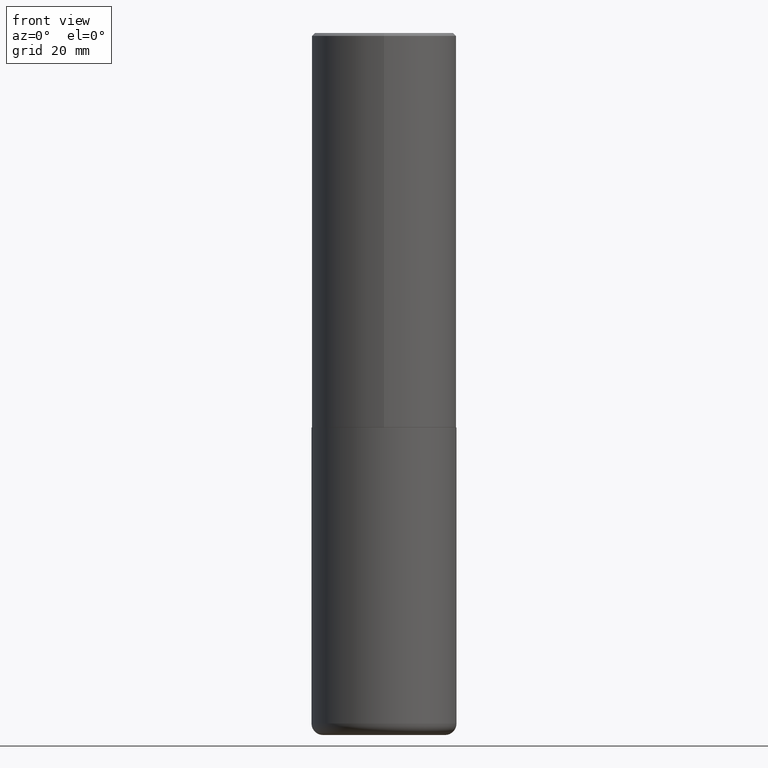
[diagram: clean part render]
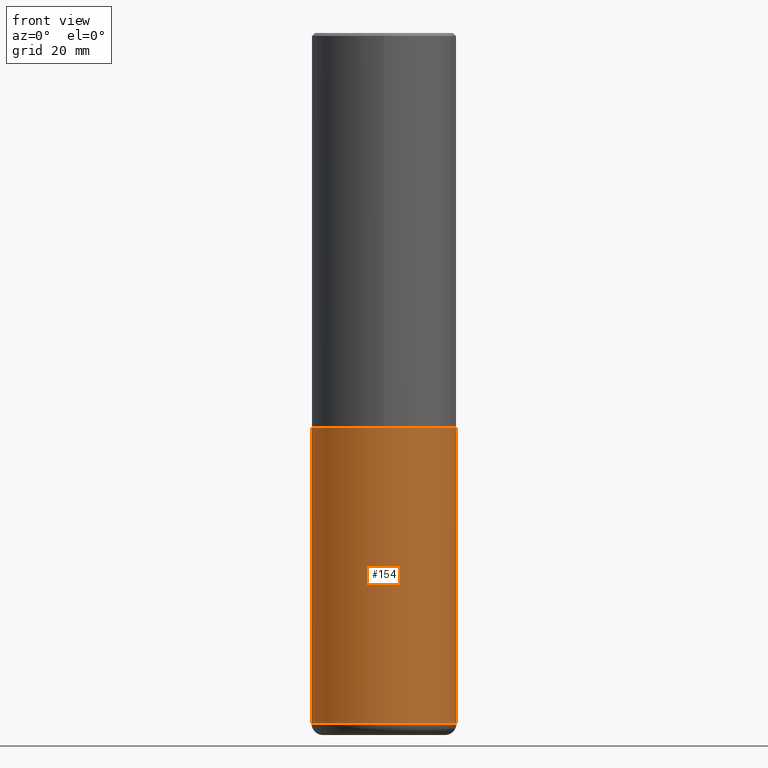
[diagram: same view with one face highlighted and labeled with its STEP entity id]
A machine part, front view. The second image highlights one B-rep face of the part: STEP entity #154.
In plain terms, the highlighted cylindrical surface (partial cylindrical patch) has radius 12.5006 mm, axis along (-0, 0, 1).
Its self-contained STEP definition (entity closure, byte-faithful):
#8 = EDGE_CURVE ( 'NONE', #267, #324, #221, .T. ) ;
#11 = ORIENTED_EDGE ( 'NONE', *, *, #8, .T. ) ;
#45 = VERTEX_POINT ( 'NONE', #140 ) ;
#50 = FACE_OUTER_BOUND ( 'NONE', #302, .T. ) ;
#54 = LINE ( 'NONE', #119, #314 ) ;
#67 = CARTESIAN_POINT ( 'NONE',  ( -0.4921500000000000874, -1.286100314657068829E-14, -4.685099999999999376 ) ) ;
#71 = ORIENTED_EDGE ( 'NONE', *, *, #233, .F. ) ;
#86 = DIRECTION ( 'NONE',  ( -2.445468806185136597E-29, 3.491481338843145583E-15, 1.000000000000000000 ) ) ;
#93 = LINE ( 'NONE', #312, #214 ) ;
#114 = DIRECTION ( 'NONE',  ( 1.000000000000000000, -6.982962677686265922E-15, 4.876176775795935793E-29 ) ) ;
#119 = CARTESIAN_POINT ( 'NONE',  ( 0.4921499999999999764, -3.436665081823295777E-15, 2.399810400207969603E-29 ) ) ;
#140 = CARTESIAN_POINT ( 'NONE',  ( 0.4921499999999999764, -1.278405892217416209E-14, -2.677199999999999580 ) ) ;
#143 = EDGE_CURVE ( 'NONE', #324, #45, #54, .T. ) ;
#144 = DIRECTION ( 'NONE',  ( -2.445468806185136877E-29, 3.491481338843145188E-15, 1.000000000000000000 ) ) ;
#154 = ADVANCED_FACE ( 'NONE', ( #50 ), #181, .T. ) ;
#181 = CYLINDRICAL_SURFACE ( 'NONE', #236, 0.4921499999999999764 ) ;
#185 = CARTESIAN_POINT ( 'NONE',  ( 6.547009087918846705E-29, -9.347393840350866318E-15, -2.677199999999999580 ) ) ;
#214 = VECTOR ( 'NONE', #379, 39.37007874015748143 ) ;
#221 = CIRCLE ( 'NONE', #227, 0.4921499999999999764 ) ;
#226 = DIRECTION ( 'NONE',  ( -2.445468806185136597E-29, 3.491481338843145583E-15, 1.000000000000000000 ) ) ;
#227 = AXIS2_PLACEMENT_3D ( 'NONE', #295, #226, #304 ) ;
#233 = EDGE_CURVE ( 'NONE', #390, #45, #282, .T. ) ;
#236 = AXIS2_PLACEMENT_3D ( 'NONE', #241, #86, #114 ) ;
#241 = CARTESIAN_POINT ( 'NONE',  ( 0.000000000000000000, 0.000000000000000000, 0.000000000000000000 ) ) ;
#246 = EDGE_CURVE ( 'NONE', #267, #390, #93, .T. ) ;
#267 = VERTEX_POINT ( 'NONE', #67 ) ;
#279 = DIRECTION ( 'NONE',  ( -2.445468806185136597E-29, 3.491481338843145583E-15, 1.000000000000000000 ) ) ;
#282 = CIRCLE ( 'NONE', #396, 0.4921499999999999764 ) ;
#292 = CARTESIAN_POINT ( 'NONE',  ( -0.4921499999999999764, -9.355730456439111248E-15, -2.677199999999999580 ) ) ;
#295 = CARTESIAN_POINT ( 'NONE',  ( 1.145726590385798145E-28, -1.635793922061402197E-14, -4.685099999999999376 ) ) ;
#300 = ORIENTED_EDGE ( 'NONE', *, *, #246, .F. ) ;
#302 = EDGE_LOOP ( 'NONE', ( #300, #11, #357, #71 ) ) ;
#304 = DIRECTION ( 'NONE',  ( 1.000000000000000000, -6.982962677686265922E-15, 0.000000000000000000 ) ) ;
#312 = CARTESIAN_POINT ( 'NONE',  ( -0.4921499999999999764, 3.496936074043332897E-15, -2.420853904668951509E-29 ) ) ;
#314 = VECTOR ( 'NONE', #144, 39.37007874015748143 ) ;
#324 = VERTEX_POINT ( 'NONE', #343 ) ;
#343 = CARTESIAN_POINT ( 'NONE',  ( 0.4921500000000000874, -1.979460430243731302E-14, -4.685099999999999376 ) ) ;
#357 = ORIENTED_EDGE ( 'NONE', *, *, #143, .T. ) ;
#372 = DIRECTION ( 'NONE',  ( 1.000000000000000000, -6.982962677686265922E-15, 0.000000000000000000 ) ) ;
#379 = DIRECTION ( 'NONE',  ( -2.445468806185136877E-29, 3.491481338843145188E-15, 1.000000000000000000 ) ) ;
#390 = VERTEX_POINT ( 'NONE', #292 ) ;
#396 = AXIS2_PLACEMENT_3D ( 'NONE', #185, #279, #372 ) ;